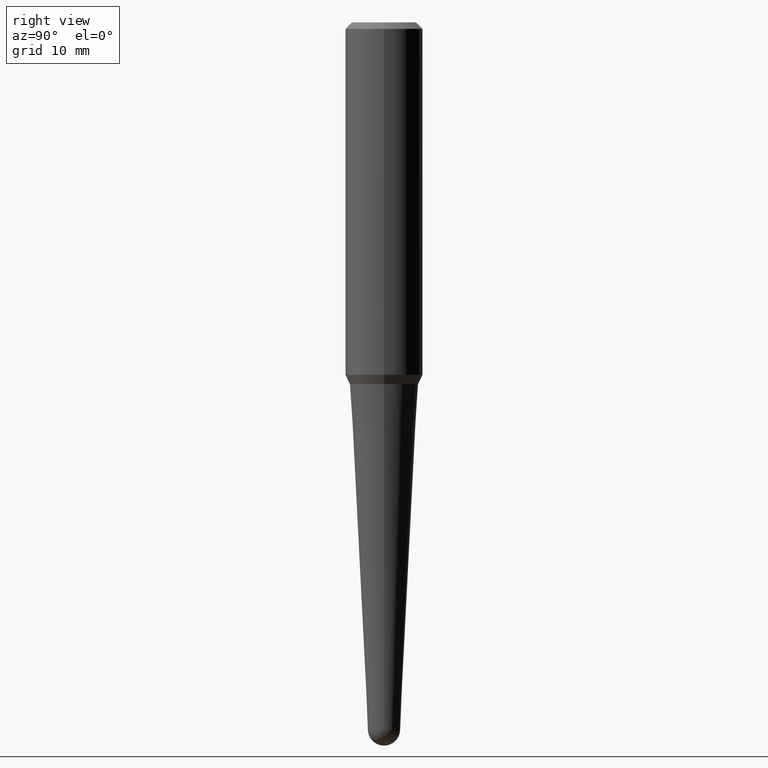
[diagram: clean part render]
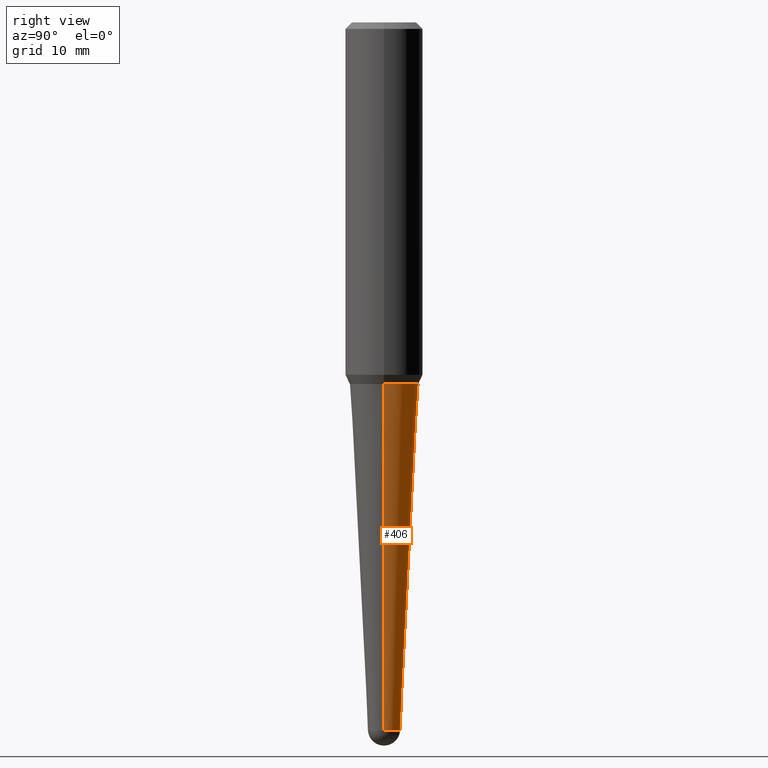
[diagram: same view with one face highlighted and labeled with its STEP entity id]
A machine part, right view. The second image highlights one B-rep face of the part: STEP entity #406.
In plain terms, the highlighted conical surface has half-angle 3 deg.
Its self-contained STEP definition (entity closure, byte-faithful):
#1 = CONICAL_SURFACE ( 'NONE', #186, 0.07799296666433258585, 0.05235987755982991071 ) ;
#3 = CARTESIAN_POINT ( 'NONE',  ( 8.378145410457613452E-29, -1.196177120752549174E-14, -3.425987438182573896 ) ) ;
#8 = VERTEX_POINT ( 'NONE', #298 ) ;
#12 = ORIENTED_EDGE ( 'NONE', *, *, #220, .T. ) ;
#14 = FACE_OUTER_BOUND ( 'NONE', #237, .T. ) ;
#27 = DIRECTION ( 'NONE',  ( 1.000000000000000000, -6.982962677686269866E-15, 0.000000000000000000 ) ) ;
#37 = EDGE_CURVE ( 'NONE', #198, #332, #348, .T. ) ;
#44 = EDGE_CURVE ( 'NONE', #101, #8, #207, .T. ) ;
#58 = ORIENTED_EDGE ( 'NONE', *, *, #419, .F. ) ;
#100 = CARTESIAN_POINT ( 'NONE',  ( 0.1658277464057546224, -7.268061307051711819E-15, -1.750000000000000000 ) ) ;
#101 = VERTEX_POINT ( 'NONE', #100 ) ;
#116 = DIRECTION ( 'NONE',  ( 1.000000000000000000, -6.982962677686265922E-15, 0.000000000000000000 ) ) ;
#127 = LINE ( 'NONE', #171, #208 ) ;
#145 = DIRECTION ( 'NONE',  ( -2.445468806185136597E-29, 3.491481338843145583E-15, 1.000000000000000000 ) ) ;
#152 = DIRECTION ( 'NONE',  ( -2.445468806185136597E-29, 3.491481338843145583E-15, 1.000000000000000000 ) ) ;
#154 = CARTESIAN_POINT ( 'NONE',  ( 8.378145410457613452E-29, -1.196177120752549174E-14, -3.425987438182573896 ) ) ;
#171 = CARTESIAN_POINT ( 'NONE',  ( 0.07799296666433258585, -1.250639318286455540E-14, -3.425987438182573896 ) ) ;
#172 = CARTESIAN_POINT ( 'NONE',  ( 8.378145410457613452E-29, -1.196177120752549174E-14, -3.425987438182573896 ) ) ;
#186 = AXIS2_PLACEMENT_3D ( 'NONE', #3, #145, #286 ) ;
#198 = VERTEX_POINT ( 'NONE', #272 ) ;
#207 = CIRCLE ( 'NONE', #307, 0.1658277464057546224 ) ;
#208 = VECTOR ( 'NONE', #341, 39.37007874015748854 ) ;
#209 = VERTEX_POINT ( 'NONE', #215 ) ;
#213 = ORIENTED_EDGE ( 'NONE', *, *, #37, .T. ) ;
#215 = CARTESIAN_POINT ( 'NONE',  ( 0.07799296666433258585, -9.887227244958132819E-15, -3.425987438182573896 ) ) ;
#220 = EDGE_CURVE ( 'NONE', #209, #198, #430, .T. ) ;
#237 = EDGE_LOOP ( 'NONE', ( #213, #436, #329, #58, #12 ) ) ;
#251 = AXIS2_PLACEMENT_3D ( 'NONE', #154, #152, #265 ) ;
#262 = CARTESIAN_POINT ( 'NONE',  ( 4.279570410823988484E-29, -6.110092342975504671E-15, -1.750000000000000000 ) ) ;
#265 = DIRECTION ( 'NONE',  ( 1.000000000000000000, -6.982962677686269866E-15, 0.000000000000000000 ) ) ;
#272 = CARTESIAN_POINT ( 'NONE',  ( 5.446219753391471810E-16, 0.07799296666432059544, -3.425987438182573896 ) ) ;
#284 = AXIS2_PLACEMENT_3D ( 'NONE', #172, #344, #27 ) ;
#286 = DIRECTION ( 'NONE',  ( 1.000000000000000000, -6.982962677686269866E-15, 0.000000000000000000 ) ) ;
#298 = CARTESIAN_POINT ( 'NONE',  ( -0.1658277464057546224, -4.931815337014733979E-15, -1.750000000000000000 ) ) ;
#307 = AXIS2_PLACEMENT_3D ( 'NONE', #262, #396, #116 ) ;
#329 = ORIENTED_EDGE ( 'NONE', *, *, #44, .F. ) ;
#332 = VERTEX_POINT ( 'NONE', #363 ) ;
#341 = DIRECTION ( 'NONE',  ( 0.05233595624294386239, 3.121236355867708811E-15, 0.9986295347545738332 ) ) ;
#344 = DIRECTION ( 'NONE',  ( -2.445468806185136597E-29, 3.491481338843145583E-15, 1.000000000000000000 ) ) ;
#348 = CIRCLE ( 'NONE', #251, 0.07799296666433258585 ) ;
#357 = VECTOR ( 'NONE', #411, 39.37007874015748854 ) ;
#363 = CARTESIAN_POINT ( 'NONE',  ( -0.07799296666433258585, -8.169706592751506412E-15, -3.425987438182573896 ) ) ;
#396 = DIRECTION ( 'NONE',  ( -2.445468806185136597E-29, 3.491481338843145583E-15, 1.000000000000000000 ) ) ;
#403 = LINE ( 'NONE', #451, #357 ) ;
#406 = ADVANCED_FACE ( 'NONE', ( #14 ), #1, .T. ) ;
#411 = DIRECTION ( 'NONE',  ( -0.05233595624294386239, 3.858565720288030357E-15, 0.9986295347545738332 ) ) ;
#419 = EDGE_CURVE ( 'NONE', #209, #101, #127, .T. ) ;
#430 = CIRCLE ( 'NONE', #284, 0.07799296666433258585 ) ;
#436 = ORIENTED_EDGE ( 'NONE', *, *, #453, .T. ) ;
#451 = CARTESIAN_POINT ( 'NONE',  ( -0.07799296666433258585, -1.140759784848827963E-14, -3.425987438182573896 ) ) ;
#453 = EDGE_CURVE ( 'NONE', #332, #8, #403, .T. ) ;